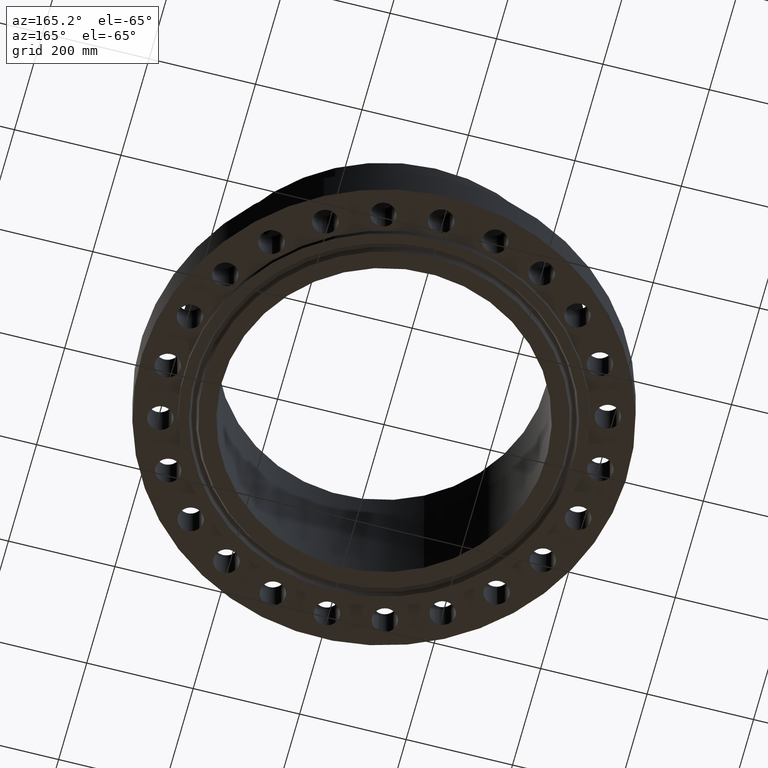
[diagram: clean part render]
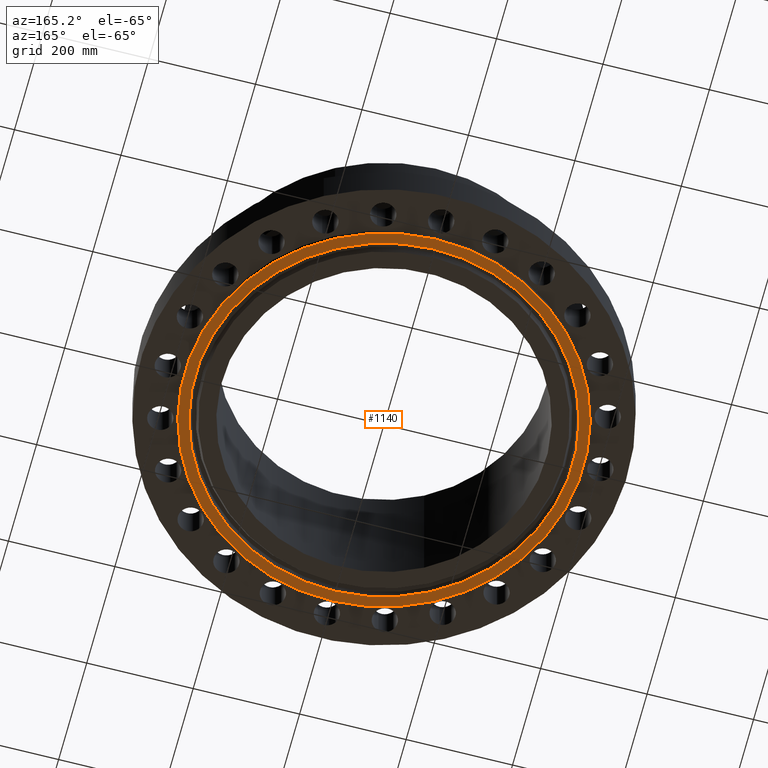
[diagram: same view with one face highlighted and labeled with its STEP entity id]
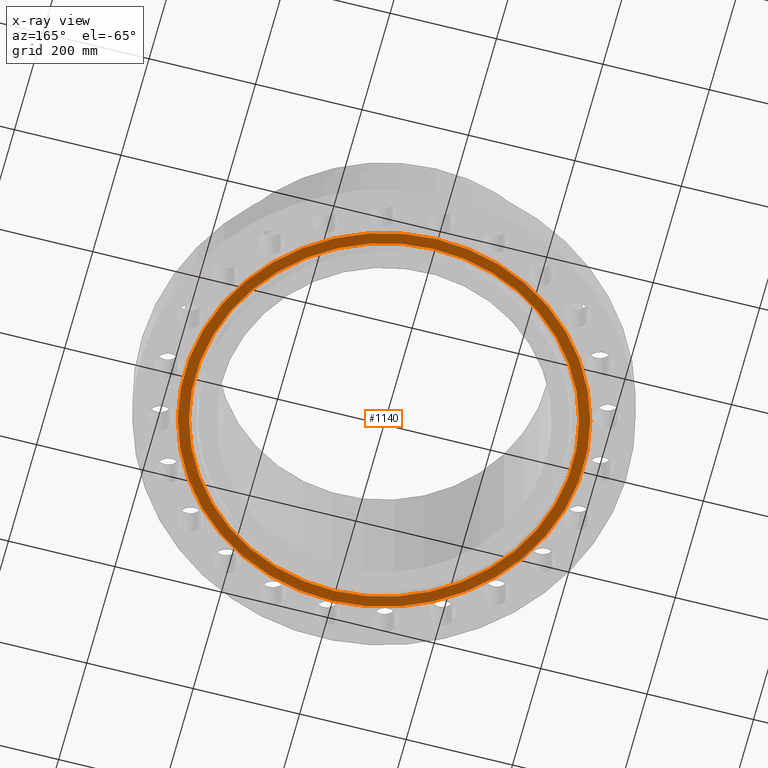
[diagram: x-ray of the same camera — body ghosted, the highlighted face saturated]
A machine part, auxiliary view. The second image highlights one B-rep face of the part: STEP entity #1140.
The next image is the same camera in x-ray: the body ghosted, the highlighted face saturated — about 0% of this face is hidden behind the body in this view.
In plain terms, the highlighted planar face has unit normal (0, 0, -1).
Its self-contained STEP definition (entity closure, byte-faithful):
#898=AXIS2_PLACEMENT_3D('Plane Axis2P3D',#895,#896,#897) ;
#1089=AXIS2_PLACEMENT_3D('Circle Axis2P3D',#1087,#1088,$) ;
#1108=AXIS2_PLACEMENT_3D('Circle Axis2P3D',#1106,#1107,$) ;
#1120=AXIS2_PLACEMENT_3D('Circle Axis2P3D',#1118,#1119,$) ;
#1129=AXIS2_PLACEMENT_3D('Circle Axis2P3D',#1127,#1128,$) ;
#895=CARTESIAN_POINT('Axis2P3D Location',(0.,13.2970000001,-0.438000000002)) ;
#1084=CARTESIAN_POINT('Vertex',(-6.68942454017,-12.2449094861,-0.438000000002)) ;
#1087=CARTESIAN_POINT('Axis2P3D Location',(0.,0.,-0.438000000002)) ;
#1091=CARTESIAN_POINT('Vertex',(6.68942454017,12.2449094861,-0.438000000002)) ;
#1106=CARTESIAN_POINT('Axis2P3D Location',(0.,0.,-0.438000000002)) ;
#1118=CARTESIAN_POINT('Axis2P3D Location',(0.,0.,-0.438000000002)) ;
#1122=CARTESIAN_POINT('Vertex',(-7.07152669444,-12.9443427879,-0.438000000002)) ;
#1124=CARTESIAN_POINT('Vertex',(7.07152669444,12.9443427879,-0.438000000002)) ;
#1127=CARTESIAN_POINT('Axis2P3D Location',(0.,0.,-0.438000000002)) ;
#896=DIRECTION('Axis2P3D Direction',(0.,0.,-0.0393700787402)) ;
#897=DIRECTION('Axis2P3D XDirection',(0.0393700787402,0.,0.)) ;
#1088=DIRECTION('Axis2P3D Direction',(0.,0.,-0.0393700787402)) ;
#1107=DIRECTION('Axis2P3D Direction',(0.,0.,-0.0393700787402)) ;
#1119=DIRECTION('Axis2P3D Direction',(0.,0.,-0.0393700787402)) ;
#1128=DIRECTION('Axis2P3D Direction',(0.,0.,-0.0393700787402)) ;
#1133=ORIENTED_EDGE('',*,*,#1126,.T.) ;
#1134=ORIENTED_EDGE('',*,*,#1131,.T.) ;
#1137=ORIENTED_EDGE('',*,*,#1110,.F.) ;
#1138=ORIENTED_EDGE('',*,*,#1093,.F.) ;
#1139=FACE_BOUND('',#1136,.T.) ;
#1140=ADVANCED_FACE('PartBody',(#1135,#1139),#899,.T.) ;
#1090=CIRCLE('generated circle',#1089,13.9530000001) ;
#1109=CIRCLE('generated circle',#1108,13.9530000001) ;
#1121=CIRCLE('generated circle',#1120,14.7500000001) ;
#1130=CIRCLE('generated circle',#1129,14.7500000001) ;
#1093=EDGE_CURVE('',#1085,#1092,#1090,.T.) ;
#1110=EDGE_CURVE('',#1092,#1085,#1109,.T.) ;
#1126=EDGE_CURVE('',#1123,#1125,#1121,.T.) ;
#1131=EDGE_CURVE('',#1125,#1123,#1130,.T.) ;
#1132=EDGE_LOOP('',(#1133,#1134)) ;
#1136=EDGE_LOOP('',(#1137,#1138)) ;
#1135=FACE_OUTER_BOUND('',#1132,.T.) ;
#899=PLANE('',#898) ;
#1085=VERTEX_POINT('',#1084) ;
#1092=VERTEX_POINT('',#1091) ;
#1123=VERTEX_POINT('',#1122) ;
#1125=VERTEX_POINT('',#1124) ;